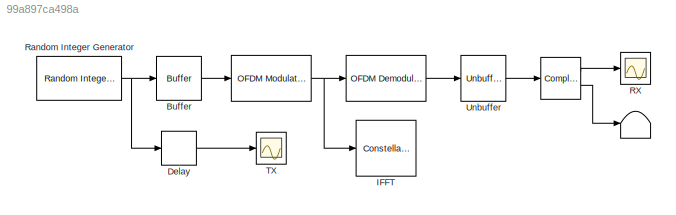
MODEL slx_99a897ca498a
KIND model
BLOCK [ComplexToRealImag]   
  Ports = [1, 2]
  SampleTime = 1e-3
BLOCK [Reference]       REF=commofdm/OFDM Modulator
  CyclicPrefixLength = 0
  FFTLength = 8
  InsertDCNull = off
  NumGuardBandCarriers = [0 ; 0]
  NumSymbols = 1
  NumTransmitAntennas = 1
  PilotCarrierIndices = [12; 26; 40; 54]
  PilotInputPort = off
  Ports = [1, 1]
  SimulateUsing = Interpreted execution
  SourceBlock = commofdm/OFDM Modulator
  SourceType = OFDM Modulator
  WindowLength = 1
  Windowing = off
BLOCK [Terminator]      
BLOCK [Reference]              REF=commofdm/OFDM Demodulator
  CyclicPrefixLength = 0
  FFTLength = 8
  NumGuardBandCarriers = [0 ; 0]
  NumReceiveAntennas = 1
  NumSymbols = 1
  PilotCarrierIndices = [12; 26; 40; 54]
  PilotOutputPort = off
  Ports = [1, 1]
  RemoveDCCarrier = off
  SimulateUsing = Interpreted execution
  SourceBlock = commofdm/OFDM Demodulator
  SourceType = OFDM Demodulator
BLOCK [Buffer] Buffer
  N = 8
  TreatMby1Signals = One channel
BLOCK [Delay] Delay
  DelayLength = 16
  InitialCondition = 0
  InputPortMap = u0
  Ports = [1, 1]
BLOCK [ConstellationDiagram] IFFT
  Ports = [1]
  ScopeSpecificationString = comm.scopes.ConstellationDiagramBlockCfg('CurrentConfiguration', extmgr.ConfigurationSet(extmgr.Configuration('Core','General UI',true),extmgr.Configuration('Core','Source UI',true),extmgr.Configuration('Sources','WiredSimulink',true),extmgr.Configuration('Visuals','Constellation',true,'MinYLim','-0.5','MaxYLim','0.5','MinXLim','-0.5','MaxXLim','0.5','XLabel','Real','YLabel','Imaginary','SymbolsTo...<+1762ch>
BLOCK [Scope] RX 
  Floating = off
  NumInputPorts = 1
  Ports = [1]
  ShowLegends = off
  YMax = 8
  YMin = -8
BLOCK [Reference] Random Integer Generator  REF=commrandsrc2/Random Integer
Generator
  Ports = [0, 1]
  SourceBlock = commrandsrc2/Random Integer\nGenerator
  SourceType = Random Integer Generator
  Ts = 1e-3
  frameBased = off
  mul = 2
  orient = on
  outDataType = double
  sampPerFrame = 50
  seed = randseed
BLOCK [Scope] TX
  Floating = off
  NumInputPorts = 1
  Ports = [1]
  SaveName = ScopeData2
  ShowLegends = off
  YMax = 8
  YMin = -8
BLOCK [Unbuffer] Unbuffer
  Ports = [1, 1]
  SampleBasedProcessing = Same as frame based
LINE            :1 -> Unbuffer:1
NET     :1 ->            :1, IFFT:1
LINE   :1 -> RX :1
LINE   :2 ->      :1
LINE Buffer:1 ->     :1
LINE Delay:1 -> TX:1
NET Random Integer Generator:1 -> Buffer:1, Delay:1
LINE Unbuffer:1 ->   :1
note: NET lines group one-source signal fan-out (src -> all destinations, sorted); 1:1 wires keep LINE
